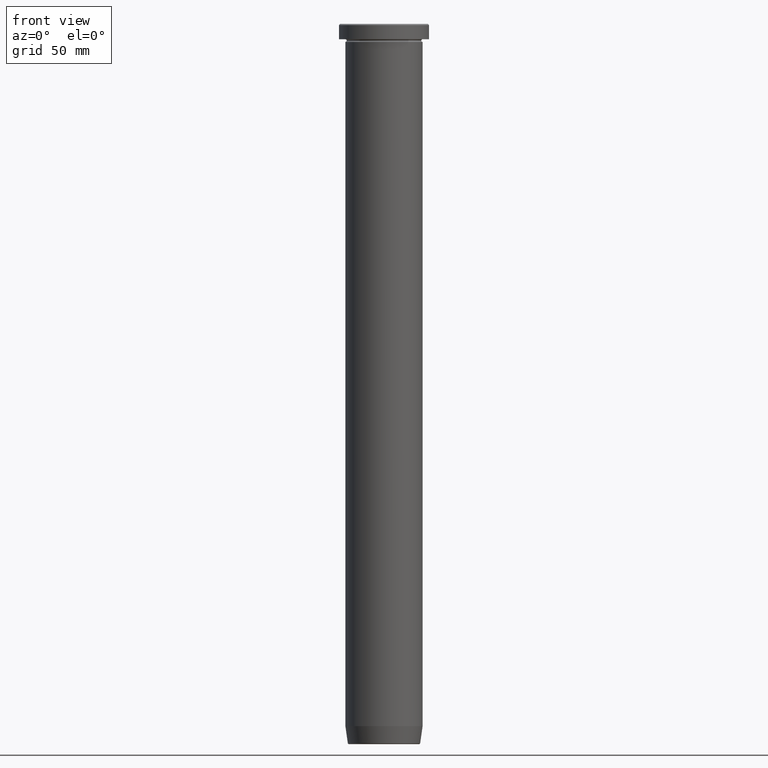
[diagram: clean part render]
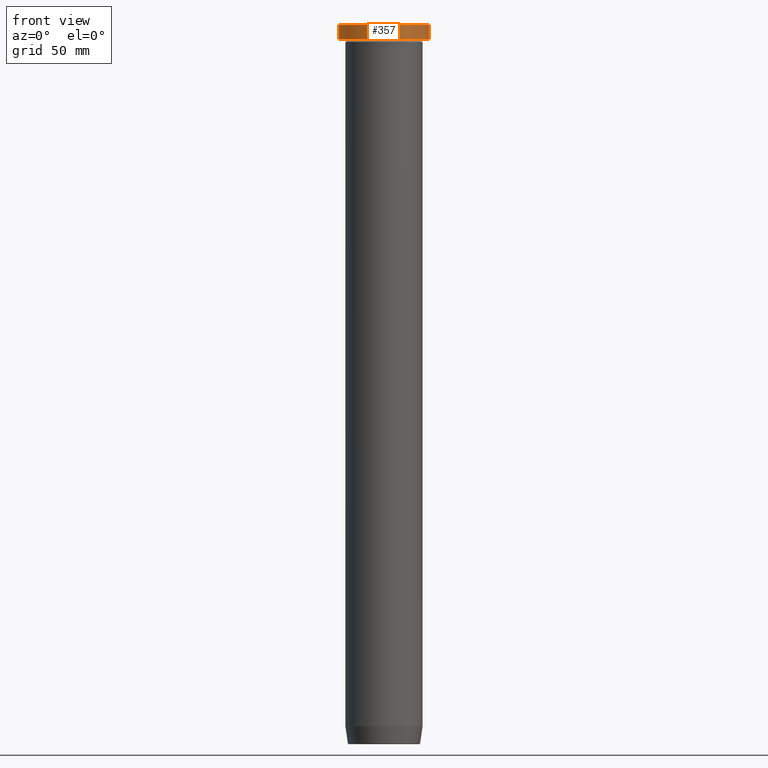
[diagram: same view with one face highlighted and labeled with its STEP entity id]
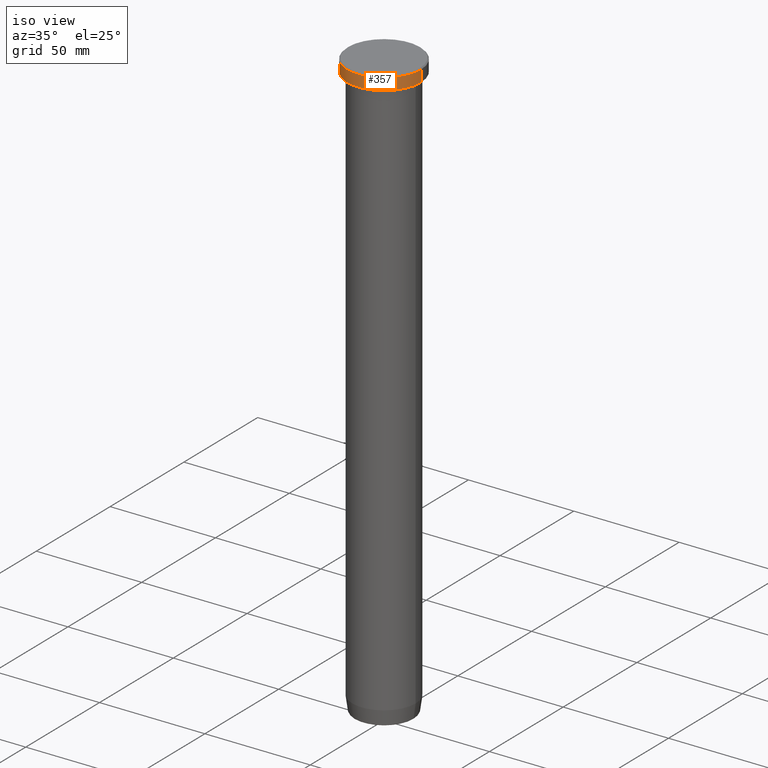
[diagram: same view with one face highlighted and labeled with its STEP entity id]
A machine part, front view. The second image highlights one B-rep face of the part: STEP entity #357.
A second angle (iso view) of the same face is appended — the face is thin or edge-on in the first view.
In plain terms, the highlighted cylindrical surface (partial cylindrical patch) has radius 17.5 mm, axis along (-0, -0, 1).
Its self-contained STEP definition (entity closure, byte-faithful):
#22 = CARTESIAN_POINT ( 'NONE',  ( -17.50000000000000000, 2.143131898507868248E-15, -0.5000000000000073275 ) ) ;
#25 = DIRECTION ( 'NONE',  ( 1.000000000000000000, 0.000000000000000000, 0.000000000000000000 ) ) ;
#41 = VERTEX_POINT ( 'NONE', #22 ) ;
#60 = DIRECTION ( 'NONE',  ( -0.000000000000000000, -0.000000000000000000, 1.000000000000000000 ) ) ;
#77 = DIRECTION ( 'NONE',  ( 0.000000000000000000, 0.000000000000000000, -1.000000000000000000 ) ) ;
#91 = AXIS2_PLACEMENT_3D ( 'NONE', #469, #348, #292 ) ;
#114 = ORIENTED_EDGE ( 'NONE', *, *, #238, .T. ) ;
#115 = LINE ( 'NONE', #584, #592 ) ;
#119 = CARTESIAN_POINT ( 'NONE',  ( 17.50000000000000000, 0.000000000000000000, -0.5000000000000073275 ) ) ;
#123 = CIRCLE ( 'NONE', #346, 17.50000000000000000 ) ;
#138 = CARTESIAN_POINT ( 'NONE',  ( 0.000000000000000000, 0.000000000000000000, -5.999999999999999112 ) ) ;
#145 = CARTESIAN_POINT ( 'NONE',  ( -17.50000000000000000, 2.143131898507868248E-15, -5.999999999999999112 ) ) ;
#159 = LINE ( 'NONE', #520, #307 ) ;
#214 = VERTEX_POINT ( 'NONE', #278 ) ;
#223 = DIRECTION ( 'NONE',  ( -0.000000000000000000, -0.000000000000000000, 1.000000000000000000 ) ) ;
#224 = ORIENTED_EDGE ( 'NONE', *, *, #242, .F. ) ;
#238 = EDGE_CURVE ( 'NONE', #599, #41, #394, .T. ) ;
#242 = EDGE_CURVE ( 'NONE', #364, #41, #115, .T. ) ;
#266 = ORIENTED_EDGE ( 'NONE', *, *, #434, .T. ) ;
#278 = CARTESIAN_POINT ( 'NONE',  ( 17.50000000000000000, 0.000000000000000000, -5.999999999999999112 ) ) ;
#292 = DIRECTION ( 'NONE',  ( 1.000000000000000000, 0.000000000000000000, 0.000000000000000000 ) ) ;
#307 = VECTOR ( 'NONE', #60, 1000.000000000000000 ) ;
#315 = CARTESIAN_POINT ( 'NONE',  ( 0.000000000000000000, 0.000000000000000000, -0.5000000000000073275 ) ) ;
#346 = AXIS2_PLACEMENT_3D ( 'NONE', #138, #507, #439 ) ;
#348 = DIRECTION ( 'NONE',  ( -0.000000000000000000, -0.000000000000000000, 1.000000000000000000 ) ) ;
#357 = ADVANCED_FACE ( 'NONE', ( #419 ), #508, .T. ) ;
#364 = VERTEX_POINT ( 'NONE', #145 ) ;
#394 = CIRCLE ( 'NONE', #441, 17.50000000000000000 ) ;
#419 = FACE_OUTER_BOUND ( 'NONE', #471, .T. ) ;
#434 = EDGE_CURVE ( 'NONE', #214, #599, #159, .T. ) ;
#439 = DIRECTION ( 'NONE',  ( 1.000000000000000000, 0.000000000000000000, 0.000000000000000000 ) ) ;
#441 = AXIS2_PLACEMENT_3D ( 'NONE', #315, #77, #25 ) ;
#469 = CARTESIAN_POINT ( 'NONE',  ( 0.000000000000000000, 0.000000000000000000, 0.000000000000000000 ) ) ;
#471 = EDGE_LOOP ( 'NONE', ( #224, #524, #266, #114 ) ) ;
#507 = DIRECTION ( 'NONE',  ( -0.000000000000000000, -0.000000000000000000, 1.000000000000000000 ) ) ;
#508 = CYLINDRICAL_SURFACE ( 'NONE', #91, 17.50000000000000000 ) ;
#518 = EDGE_CURVE ( 'NONE', #364, #214, #123, .T. ) ;
#520 = CARTESIAN_POINT ( 'NONE',  ( 17.50000000000000000, 0.000000000000000000, 0.000000000000000000 ) ) ;
#524 = ORIENTED_EDGE ( 'NONE', *, *, #518, .T. ) ;
#584 = CARTESIAN_POINT ( 'NONE',  ( -17.50000000000000000, 2.143131898507868248E-15, 0.000000000000000000 ) ) ;
#592 = VECTOR ( 'NONE', #223, 1000.000000000000000 ) ;
#599 = VERTEX_POINT ( 'NONE', #119 ) ;